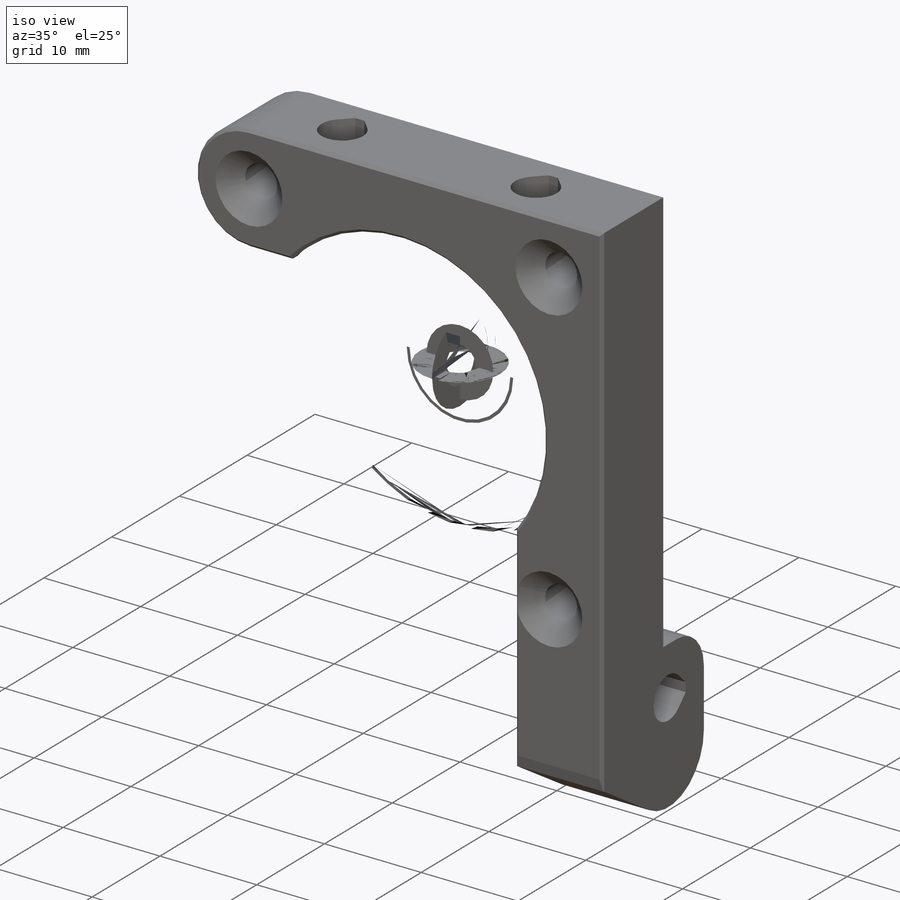
[diagram: iso view]
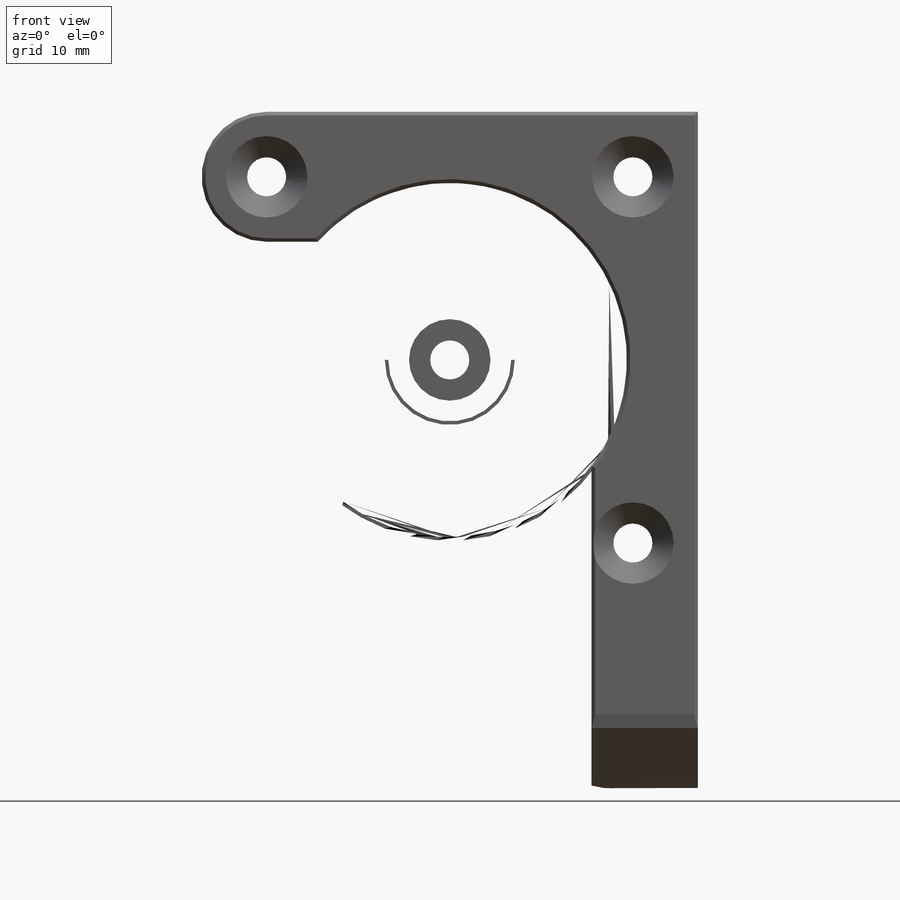
[diagram: front view]
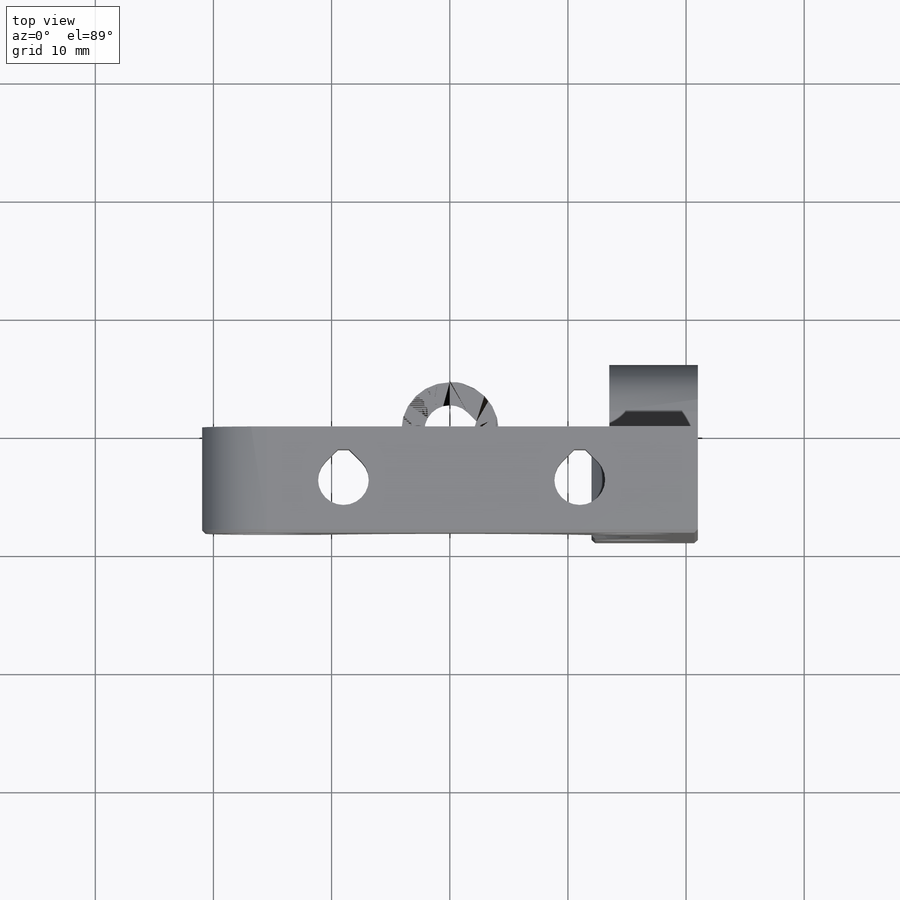
[diagram: top view]
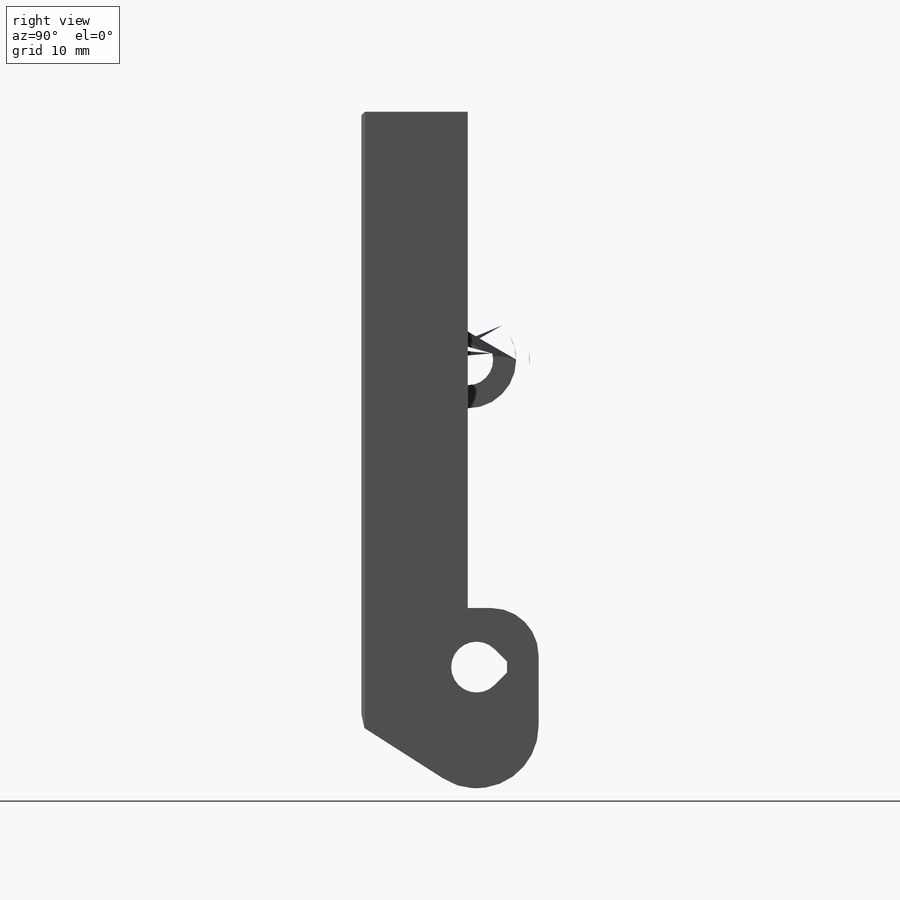
[diagram: right view]
SOLIDWORKS PART (.sldprt)
format: sldprt  version: not decoded by parser v0  size: 407,040 bytes
history: native  units: mm
features: sketch x9, cut_extrude x6, chamfer x5, extrude x3, material x1, fillet x1 (+13 scaffold rows collapsed)
feature tree (38):
  scaffold x13  (default folders/planes/origin — collapsed)
  material  "Custom Plastic"
  sketch  "Sketch1"  dims[c1.D2=22.0mm c1.D3=3.3mm c1.D5=5.5mm c1.D7=15.0mm c1.D1=42.0mm c1.D4=31.0mm c2.D5=10.0mm c2.D6=9.0mm]
  extrude  "Boss-Extrude1"  Depth=9mm
  sketch  "Sketch2"  dims[c1.D1=4.3mm c1.D3=3.1mm c1.D2=20.0mm c2.D3=10.0mm]
  cut_extrude  "Cut-Extrude1"  Depth=14mm
  sketch  "Sketch3"  dims[D1=42.0mm]
  extrude  "Boss-Extrude2"  Depth=6mm
  sketch  "Sketch4"  dims[D1=4.3mm D2=0.75mm]
  cut_extrude  "Cut-Extrude2"  [1 undecoded]
  sketch  "Sketch9"
  extrude  "Boss-Extrude3"  [1 undecoded]
  fillet  "Fillet1"  Radius=4mm
  sketch  "Sketch5"  dims[D1=8.2mm]
  cut_extrude  "Cut-Extrude3"  Depth=13.5mm
  chamfer  "Chamfer1"  Distance=1.8mm Angle=45deg
  chamfer  "Chamfer2"  Distance=2mm Angle=45deg
  sketch  "Sketch6"  dims[D1=8.2mm]
  cut_extrude  "Cut-Extrude4"  Depth=7.5mm
  chamfer  "Chamfer3"  Distance=2mm Angle=45deg
  chamfer  "Chamfer4"  Distance=1.5mm Angle=45deg
  sketch  "Sketch7"  dims[D1=0.42mm D2=0.42mm]
  cut_extrude  "Cut-Extrude5"  [1 undecoded]
  sketch  "Sketch8"  dims[D1=0.42mm]
  cut_extrude  "Cut-Extrude6"  [1 undecoded]
  chamfer  "Chamfer5"  Distance=0.3mm Angle=45deg
decode coverage: 19 of 24 modeling features carry decoded parameters
note: 4 parameter values undecoded
summary: no parameter record found for 4 features
note: suppression state not decoded; provenance and decode notes live in map.json
